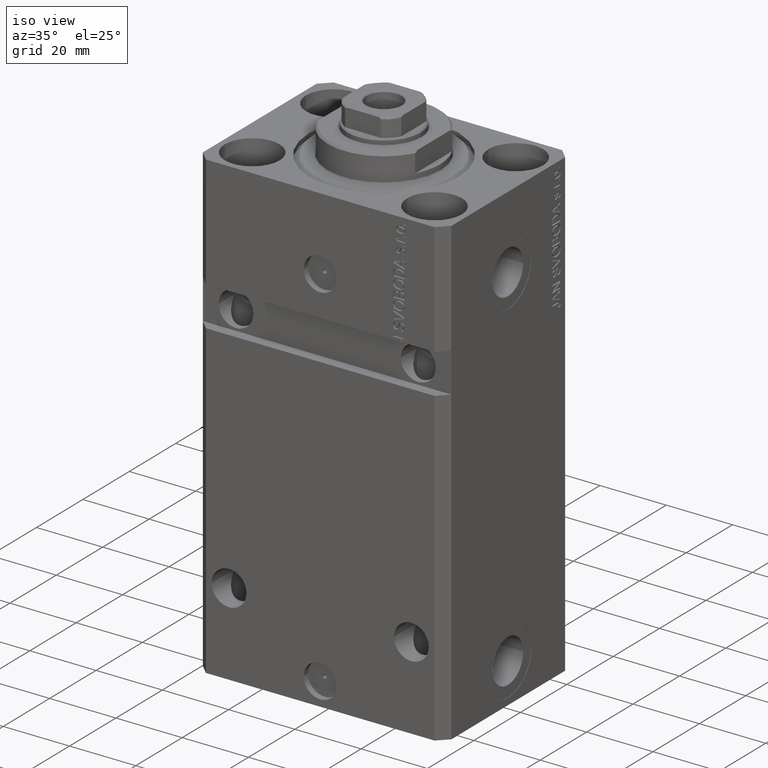
[diagram: clean part render]
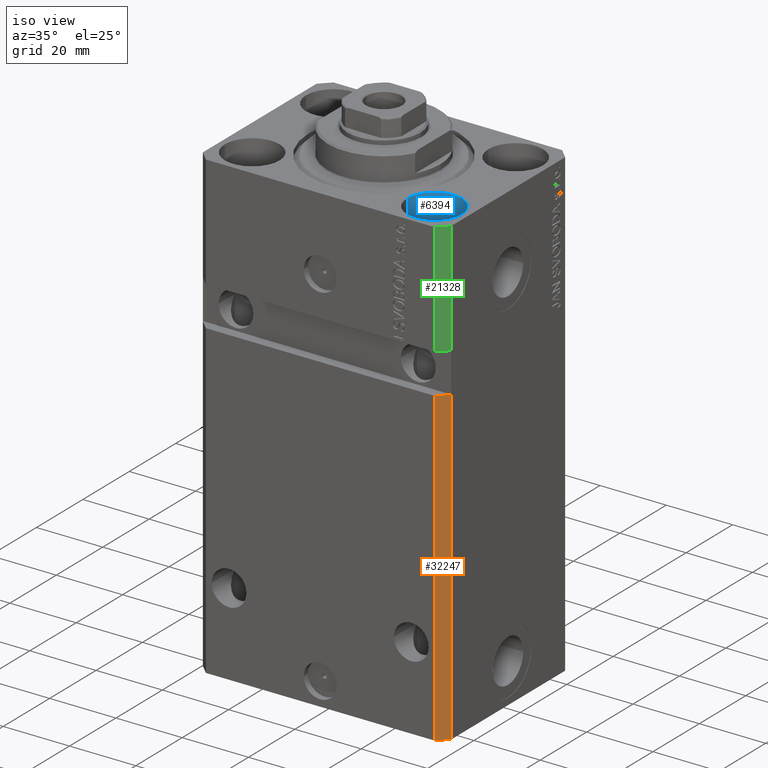
[diagram: same view with three faces highlighted in distinct colors, each labeled with its STEP entity id]
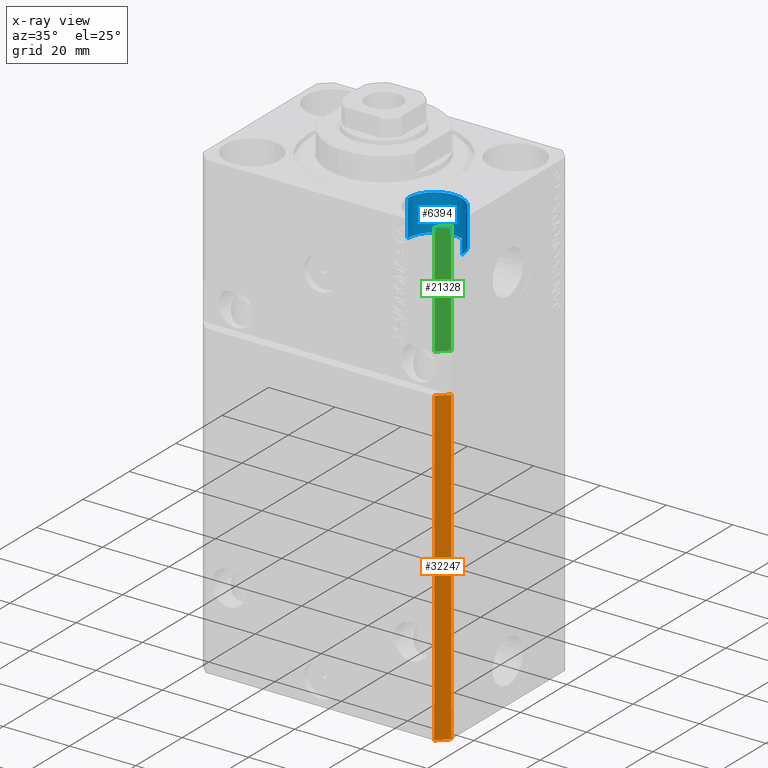
[diagram: x-ray of the same camera — body ghosted, the three highlighted faces saturated]
A machine part, iso view with three faces highlighted in distinct colors.
The next image is the same camera in x-ray (body ghosted, the three faces saturated) — at least one of them is partly hidden behind the body in this view.
Their STEP definitions:

[orange] entity #32247 — the highlighted planar face has unit normal (0.7071, -0.7071, 0).
#178 = VERTEX_POINT ( 'NONE', #11417 ) ;
#1255 = EDGE_CURVE ( 'NONE', #7307, #178, #36691, .T. ) ;
#2262 = LINE ( 'NONE', #30227, #6973 ) ;
#3323 = VERTEX_POINT ( 'NONE', #33480 ) ;
#3971 = CARTESIAN_POINT ( 'NONE',  ( 34.49999999999999289, -27.49999999999999645, -140.0000000000000000 ) ) ;
#4196 = PLANE ( 'NONE',  #7133 ) ;
#6643 = EDGE_LOOP ( 'NONE', ( #19865, #42963, #15364, #37192 ) ) ;
#6973 = VECTOR ( 'NONE', #37005, 1000.000000000000114 ) ;
#7133 = AXIS2_PLACEMENT_3D ( 'NONE', #3971, #27894, #44613 ) ;
#7307 = VERTEX_POINT ( 'NONE', #37479 ) ;
#9143 = CARTESIAN_POINT ( 'NONE',  ( 37.49999999999999289, -24.49999999999999289, -45.99999999999999289 ) ) ;
#11417 = CARTESIAN_POINT ( 'NONE',  ( 34.49999999999999289, -27.49999999999999289, -45.99999999999999289 ) ) ;
#15270 = VECTOR ( 'NONE', #42618, 1000.000000000000000 ) ;
#15364 = ORIENTED_EDGE ( 'NONE', *, *, #22413, .T. ) ;
#17106 = VECTOR ( 'NONE', #17633, 1000.000000000000114 ) ;
#17633 = DIRECTION ( 'NONE',  ( 0.7071067811865474617, 0.7071067811865474617, 0.000000000000000000 ) ) ;
#18918 = CARTESIAN_POINT ( 'NONE',  ( 37.49999999999999289, -24.50000000000000000, -140.0000000000000000 ) ) ;
#19865 = ORIENTED_EDGE ( 'NONE', *, *, #22471, .F. ) ;
#21235 = CARTESIAN_POINT ( 'NONE',  ( 34.49999999999999289, -27.49999999999999645, -140.0000000000000000 ) ) ;
#22413 = EDGE_CURVE ( 'NONE', #7307, #3323, #41555, .T. ) ;
#22471 = EDGE_CURVE ( 'NONE', #178, #33545, #2262, .T. ) ;
#26367 = VECTOR ( 'NONE', #33299, 1000.000000000000000 ) ;
#27894 = DIRECTION ( 'NONE',  ( 0.7071067811865475727, -0.7071067811865475727, 0.000000000000000000 ) ) ;
#30227 = CARTESIAN_POINT ( 'NONE',  ( 34.49999999999998579, -27.50000000000000000, -46.00000000000000000 ) ) ;
#31720 = FACE_OUTER_BOUND ( 'NONE', #6643, .T. ) ;
#32247 = ADVANCED_FACE ( 'NONE', ( #31720 ), #4196, .T. ) ;
#33299 = DIRECTION ( 'NONE',  ( 0.000000000000000000, 0.000000000000000000, 1.000000000000000000 ) ) ;
#33480 = CARTESIAN_POINT ( 'NONE',  ( 37.49999999999999289, -24.50000000000000000, -140.0000000000000000 ) ) ;
#33520 = CARTESIAN_POINT ( 'NONE',  ( 34.49999999999999289, -27.49999999999999645, -140.0000000000000000 ) ) ;
#33545 = VERTEX_POINT ( 'NONE', #9143 ) ;
#36691 = LINE ( 'NONE', #33520, #26367 ) ;
#37005 = DIRECTION ( 'NONE',  ( 0.7071067811865474617, 0.7071067811865474617, 6.542051911182397555E-17 ) ) ;
#37192 = ORIENTED_EDGE ( 'NONE', *, *, #38591, .T. ) ;
#37479 = CARTESIAN_POINT ( 'NONE',  ( 34.49999999999999289, -27.49999999999999645, -140.0000000000000000 ) ) ;
#38591 = EDGE_CURVE ( 'NONE', #3323, #33545, #42831, .T. ) ;
#41555 = LINE ( 'NONE', #21235, #17106 ) ;
#42618 = DIRECTION ( 'NONE',  ( 0.000000000000000000, 0.000000000000000000, 1.000000000000000000 ) ) ;
#42831 = LINE ( 'NONE', #18918, #15270 ) ;
#42963 = ORIENTED_EDGE ( 'NONE', *, *, #1255, .F. ) ;
#44613 = DIRECTION ( 'NONE',  ( 0.7071067811865474617, 0.7071067811865474617, 0.000000000000000000 ) ) ;

[blue] entity #6394 — the highlighted cylindrical surface (edge-blend (fillet) strip) has radius 8.25 mm, axis along (0, 0, 1).
#4044 = DIRECTION ( 'NONE',  ( -0.000000000000000000, -0.000000000000000000, 1.000000000000000000 ) ) ;
#5641 = CARTESIAN_POINT ( 'NONE',  ( 27.50000000000000355, -17.50000000000000000, -11.00000000000000000 ) ) ;
#5674 = DIRECTION ( 'NONE',  ( 1.000000000000000000, 0.000000000000000000, 0.000000000000000000 ) ) ;
#6067 = DIRECTION ( 'NONE',  ( 0.000000000000000000, 0.000000000000000000, 1.000000000000000000 ) ) ;
#6394 = ADVANCED_FACE ( 'NONE', ( #19220 ), #26211, .F. ) ;
#8136 = EDGE_CURVE ( 'NONE', #20905, #24262, #10582, .T. ) ;
#10148 = CARTESIAN_POINT ( 'NONE',  ( 35.75000000000000711, -17.50000000000000000, -11.00000000000000000 ) ) ;
#10582 = CIRCLE ( 'NONE', #16358, 8.250000000000000000 ) ;
#11047 = CARTESIAN_POINT ( 'NONE',  ( 19.25000000000000000, -17.50000000000000000, -11.00000000000000000 ) ) ;
#11623 = ORIENTED_EDGE ( 'NONE', *, *, #8136, .T. ) ;
#12056 = CIRCLE ( 'NONE', #19967, 8.250000000000000000 ) ;
#12468 = DIRECTION ( 'NONE',  ( -0.000000000000000000, -0.000000000000000000, 1.000000000000000000 ) ) ;
#15885 = ORIENTED_EDGE ( 'NONE', *, *, #22493, .F. ) ;
#16358 = AXIS2_PLACEMENT_3D ( 'NONE', #34278, #6067, #23445 ) ;
#17738 = CARTESIAN_POINT ( 'NONE',  ( 35.75000000000000711, -17.50000000000000000, -11.00000000000000000 ) ) ;
#19220 = FACE_OUTER_BOUND ( 'NONE', #39745, .T. ) ;
#19412 = DIRECTION ( 'NONE',  ( 0.000000000000000000, 0.000000000000000000, 1.000000000000000000 ) ) ;
#19532 = CARTESIAN_POINT ( 'NONE',  ( 19.25000000000000000, -17.50000000000000000, -11.00000000000000000 ) ) ;
#19967 = AXIS2_PLACEMENT_3D ( 'NONE', #5641, #19412, #33179 ) ;
#20905 = VERTEX_POINT ( 'NONE', #32972 ) ;
#22493 = EDGE_CURVE ( 'NONE', #36768, #33543, #12056, .T. ) ;
#23445 = DIRECTION ( 'NONE',  ( 1.000000000000000000, 0.000000000000000000, 0.000000000000000000 ) ) ;
#24262 = VERTEX_POINT ( 'NONE', #30885 ) ;
#25399 = VECTOR ( 'NONE', #37230, 1000.000000000000000 ) ;
#26211 = CYLINDRICAL_SURFACE ( 'NONE', #44411, 8.250000000000000000 ) ;
#28189 = LINE ( 'NONE', #11047, #36938 ) ;
#30019 = ORIENTED_EDGE ( 'NONE', *, *, #43628, .T. ) ;
#30885 = CARTESIAN_POINT ( 'NONE',  ( 19.25000000000000000, -17.50000000000000000, 0.000000000000000000 ) ) ;
#32972 = CARTESIAN_POINT ( 'NONE',  ( 35.75000000000000711, -17.50000000000000000, 0.000000000000000000 ) ) ;
#32990 = CARTESIAN_POINT ( 'NONE',  ( 27.50000000000000355, -17.50000000000000000, -11.00000000000000000 ) ) ;
#33179 = DIRECTION ( 'NONE',  ( 1.000000000000000000, 0.000000000000000000, 0.000000000000000000 ) ) ;
#33543 = VERTEX_POINT ( 'NONE', #19532 ) ;
#34278 = CARTESIAN_POINT ( 'NONE',  ( 27.50000000000000355, -17.50000000000000000, 0.000000000000000000 ) ) ;
#34528 = LINE ( 'NONE', #10148, #25399 ) ;
#36768 = VERTEX_POINT ( 'NONE', #17738 ) ;
#36938 = VECTOR ( 'NONE', #4044, 1000.000000000000000 ) ;
#37230 = DIRECTION ( 'NONE',  ( -0.000000000000000000, -0.000000000000000000, 1.000000000000000000 ) ) ;
#39745 = EDGE_LOOP ( 'NONE', ( #42284, #15885, #30019, #11623 ) ) ;
#42284 = ORIENTED_EDGE ( 'NONE', *, *, #43680, .F. ) ;
#43628 = EDGE_CURVE ( 'NONE', #36768, #20905, #34528, .T. ) ;
#43680 = EDGE_CURVE ( 'NONE', #33543, #24262, #28189, .T. ) ;
#44411 = AXIS2_PLACEMENT_3D ( 'NONE', #32990, #12468, #5674 ) ;

[green] entity #21328 — the highlighted planar face has unit normal (0.7071, -0.7071, 0).
#1387 = DIRECTION ( 'NONE',  ( -0.7071067811865474617, -0.7071067811865474617, -6.542051911182397555E-17 ) ) ;
#1447 = ORIENTED_EDGE ( 'NONE', *, *, #44253, .T. ) ;
#2230 = DIRECTION ( 'NONE',  ( 0.7071067811865475727, -0.7071067811865475727, 0.000000000000000000 ) ) ;
#2447 = FACE_OUTER_BOUND ( 'NONE', #43218, .T. ) ;
#4095 = ORIENTED_EDGE ( 'NONE', *, *, #5578, .F. ) ;
#4633 = VERTEX_POINT ( 'NONE', #20995 ) ;
#5079 = DIRECTION ( 'NONE',  ( 0.7071067811865474617, 0.7071067811865474617, 0.000000000000000000 ) ) ;
#5462 = ORIENTED_EDGE ( 'NONE', *, *, #41148, .F. ) ;
#5578 = EDGE_CURVE ( 'NONE', #29891, #29080, #7890, .T. ) ;
#6345 = VERTEX_POINT ( 'NONE', #22607 ) ;
#7890 = LINE ( 'NONE', #8109, #12079 ) ;
#8109 = CARTESIAN_POINT ( 'NONE',  ( 34.49999999999999289, -27.49999999999999645, -140.0000000000000000 ) ) ;
#8682 = CARTESIAN_POINT ( 'NONE',  ( 34.49999999999999289, -27.49999999999999645, 0.000000000000000000 ) ) ;
#10250 = CARTESIAN_POINT ( 'NONE',  ( 34.49999999999999289, -27.49999999999999645, 0.000000000000000000 ) ) ;
#12019 = AXIS2_PLACEMENT_3D ( 'NONE', #13068, #2230, #12852 ) ;
#12079 = VECTOR ( 'NONE', #36102, 1000.000000000000000 ) ;
#12318 = LINE ( 'NONE', #8682, #39737 ) ;
#12852 = DIRECTION ( 'NONE',  ( 0.7071067811865474617, 0.7071067811865474617, 0.000000000000000000 ) ) ;
#13068 = CARTESIAN_POINT ( 'NONE',  ( 34.49999999999999289, -27.49999999999999645, -140.0000000000000000 ) ) ;
#13815 = VECTOR ( 'NONE', #1387, 1000.000000000000114 ) ;
#14922 = CARTESIAN_POINT ( 'NONE',  ( 34.49999999999998579, -27.50000000000000000, -34.00000000000000000 ) ) ;
#16070 = VECTOR ( 'NONE', #43416, 1000.000000000000000 ) ;
#20995 = CARTESIAN_POINT ( 'NONE',  ( 37.49999999999999289, -24.49999999999999289, -33.99999999999999289 ) ) ;
#21328 = ADVANCED_FACE ( 'NONE', ( #2447 ), #30412, .T. ) ;
#22607 = CARTESIAN_POINT ( 'NONE',  ( 37.49999999999999289, -24.50000000000000000, 0.000000000000000000 ) ) ;
#24406 = CARTESIAN_POINT ( 'NONE',  ( 34.49999999999999289, -27.49999999999999289, -33.99999999999999289 ) ) ;
#29080 = VERTEX_POINT ( 'NONE', #10250 ) ;
#29891 = VERTEX_POINT ( 'NONE', #24406 ) ;
#30412 = PLANE ( 'NONE',  #12019 ) ;
#31617 = LINE ( 'NONE', #14922, #13815 ) ;
#33037 = LINE ( 'NONE', #39132, #16070 ) ;
#33918 = ORIENTED_EDGE ( 'NONE', *, *, #42351, .F. ) ;
#36102 = DIRECTION ( 'NONE',  ( 0.000000000000000000, 0.000000000000000000, 1.000000000000000000 ) ) ;
#39132 = CARTESIAN_POINT ( 'NONE',  ( 37.49999999999999289, -24.50000000000000000, -140.0000000000000000 ) ) ;
#39737 = VECTOR ( 'NONE', #5079, 1000.000000000000114 ) ;
#41148 = EDGE_CURVE ( 'NONE', #29080, #6345, #12318, .T. ) ;
#42351 = EDGE_CURVE ( 'NONE', #4633, #29891, #31617, .T. ) ;
#43218 = EDGE_LOOP ( 'NONE', ( #33918, #1447, #5462, #4095 ) ) ;
#43416 = DIRECTION ( 'NONE',  ( 0.000000000000000000, 0.000000000000000000, 1.000000000000000000 ) ) ;
#44253 = EDGE_CURVE ( 'NONE', #4633, #6345, #33037, .T. ) ;